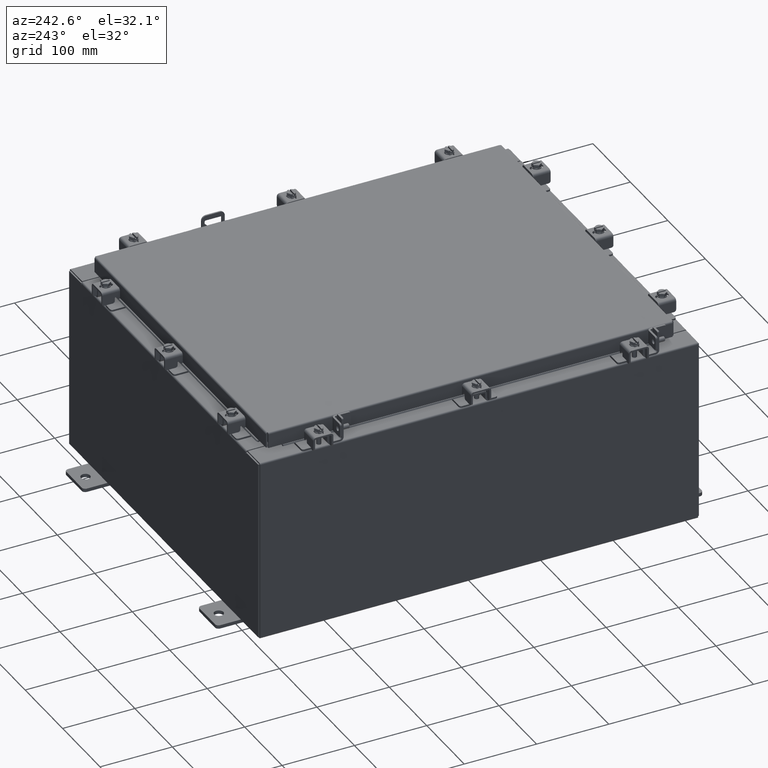
[diagram: clean part render]
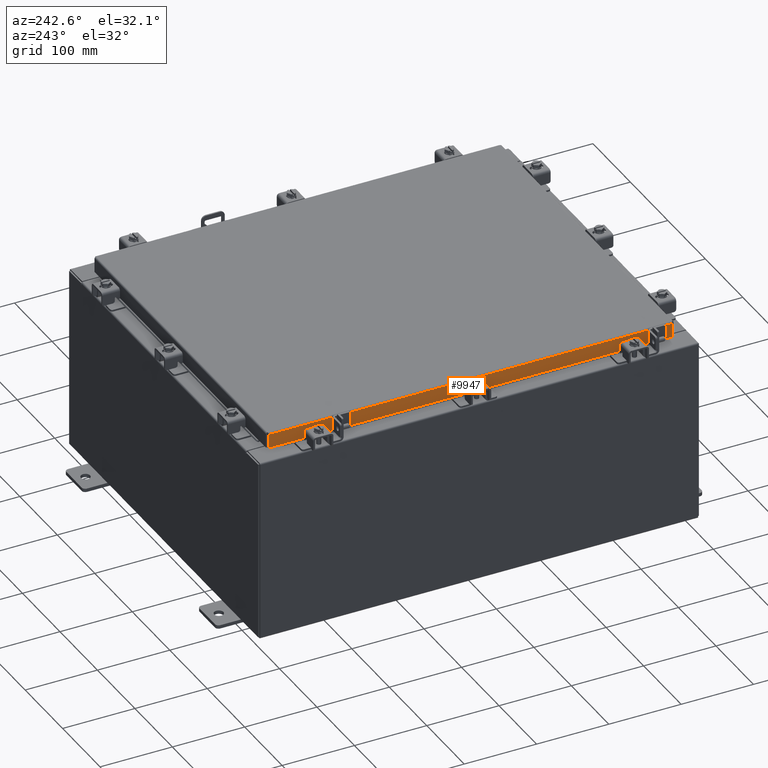
[diagram: same view with one face highlighted and labeled with its STEP entity id]
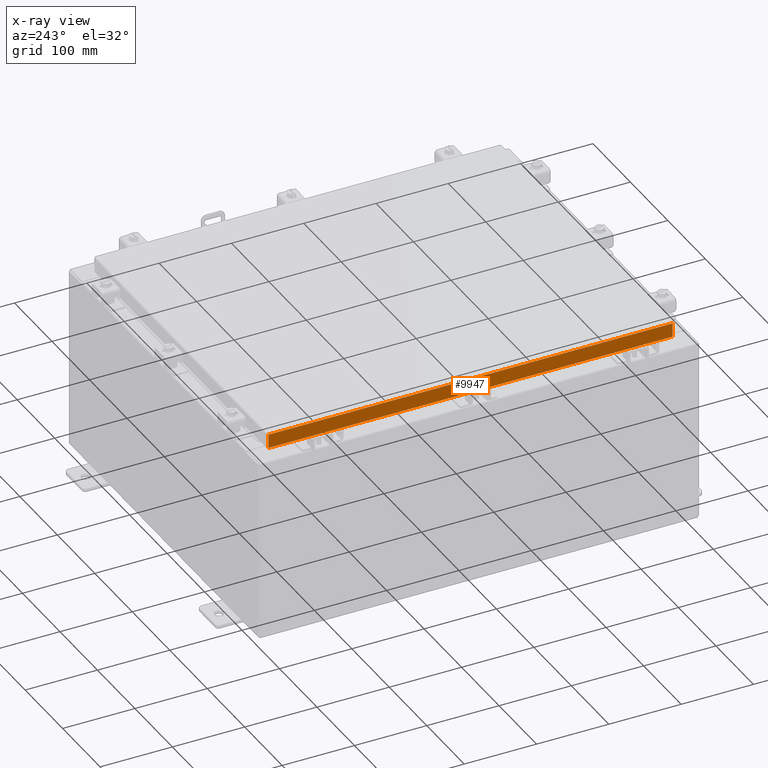
[diagram: x-ray of the same camera — body ghosted, the highlighted face saturated]
A machine part, auxiliary view. The second image highlights one B-rep face of the part: STEP entity #9947.
The next image is the same camera in x-ray: the body ghosted, the highlighted face saturated — about 0% of this face is hidden behind the body in this view.
In plain terms, the highlighted planar face has unit normal (1, 0, -0).
Its self-contained STEP definition (entity closure, byte-faithful):
#551 = LINE ( 'NONE', #21646, #4714 ) ;
#1304 = VERTEX_POINT ( 'NONE', #21882 ) ;
#1315 = VECTOR ( 'NONE', #3451, 39.37007874015748100 ) ;
#1355 = CARTESIAN_POINT ( 'NONE',  ( -9.093999999999995900, -10.25515786437626900, -0.8499999999999999800 ) ) ;
#1889 = LINE ( 'NONE', #17384, #1315 ) ;
#2074 = CARTESIAN_POINT ( 'NONE',  ( -9.094000000000001200, 0.0000000000000000000, 2.622574073917692700E-014 ) ) ;
#3269 = VECTOR ( 'NONE', #18938, 39.37007874015748100 ) ;
#3340 = VERTEX_POINT ( 'NONE', #11591 ) ;
#3451 = DIRECTION ( 'NONE',  ( 4.379057701015054300E-047, 1.000000000000000000, 1.169666303398706600E-016 ) ) ;
#3871 = DIRECTION ( 'NONE',  ( -2.818880942772360100E-015, 0.0000000000000000000, -1.000000000000000000 ) ) ;
#4324 = DIRECTION ( 'NONE',  ( -2.818880942772360100E-015, 6.982962677686267500E-015, -1.000000000000000000 ) ) ;
#4714 = VECTOR ( 'NONE', #4324, 39.37007874015748100 ) ;
#4769 = AXIS2_PLACEMENT_3D ( 'NONE', #2074, #14289, #3871 ) ;
#5080 = VECTOR ( 'NONE', #6622, 39.37007874015748100 ) ;
#5299 = EDGE_CURVE ( 'NONE', #6013, #1304, #13018, .T. ) ;
#5637 = LINE ( 'NONE', #9734, #13821 ) ;
#5962 = CARTESIAN_POINT ( 'NONE',  ( -9.094000000000004700, 11.00515786437627400, -0.8499999999999977600 ) ) ;
#6013 = VERTEX_POINT ( 'NONE', #17179 ) ;
#6310 = FACE_OUTER_BOUND ( 'NONE', #19292, .T. ) ;
#6474 = ORIENTED_EDGE ( 'NONE', *, *, #12133, .F. ) ;
#6622 = DIRECTION ( 'NONE',  ( -2.818880942772360100E-015, 6.982962677686267500E-015, -1.000000000000000000 ) ) ;
#6661 = EDGE_CURVE ( 'NONE', #1304, #20698, #18957, .T. ) ;
#7971 = DIRECTION ( 'NONE',  ( 4.379057701015054300E-047, 1.000000000000000000, 1.169666303398706600E-016 ) ) ;
#8159 = ORIENTED_EDGE ( 'NONE', *, *, #6661, .F. ) ;
#8521 = CARTESIAN_POINT ( 'NONE',  ( -9.093999999999995900, -10.25515786437626900, -0.8499999999999999800 ) ) ;
#9435 = EDGE_CURVE ( 'NONE', #6013, #16396, #551, .T. ) ;
#9734 = CARTESIAN_POINT ( 'NONE',  ( -9.094000000000004700, -11.09400000000000100, -0.8499999999999999800 ) ) ;
#9947 = ADVANCED_FACE ( 'NONE', ( #6310 ), #10802, .F. ) ;
#10357 = LINE ( 'NONE', #8521, #3269 ) ;
#10802 = PLANE ( 'NONE',  #4769 ) ;
#11591 = CARTESIAN_POINT ( 'NONE',  ( -9.093999999999995900, 10.25515786437626900, -0.8499999999999999800 ) ) ;
#11631 = CARTESIAN_POINT ( 'NONE',  ( -9.094000000000001200, -11.09399999999999900, -0.08770000000000026400 ) ) ;
#11826 = CARTESIAN_POINT ( 'NONE',  ( -9.094000000000001200, -11.00515786437626700, -0.07470000000000015500 ) ) ;
#12133 = EDGE_CURVE ( 'NONE', #20698, #20391, #1889, .T. ) ;
#13018 = LINE ( 'NONE', #11631, #17654 ) ;
#13569 = ORIENTED_EDGE ( 'NONE', *, *, #5299, .F. ) ;
#13821 = VECTOR ( 'NONE', #7971, 39.37007874015748100 ) ;
#14222 = ORIENTED_EDGE ( 'NONE', *, *, #17528, .F. ) ;
#14289 = DIRECTION ( 'NONE',  ( 1.000000000000000000, 3.297150052053607100E-031, -2.818880942772360100E-015 ) ) ;
#16396 = VERTEX_POINT ( 'NONE', #5962 ) ;
#17179 = CARTESIAN_POINT ( 'NONE',  ( -9.094000000000001200, 11.00515786437626900, -0.08770000000000026400 ) ) ;
#17384 = CARTESIAN_POINT ( 'NONE',  ( -9.094000000000004700, -11.09400000000000100, -0.8499999999999999800 ) ) ;
#17528 = EDGE_CURVE ( 'NONE', #20391, #3340, #10357, .T. ) ;
#17654 = VECTOR ( 'NONE', #20231, 39.37007874015748100 ) ;
#17869 = ORIENTED_EDGE ( 'NONE', *, *, #9435, .T. ) ;
#18938 = DIRECTION ( 'NONE',  ( -0.0000000000000000000, 1.000000000000000000, -0.0000000000000000000 ) ) ;
#18957 = LINE ( 'NONE', #11826, #5080 ) ;
#19208 = EDGE_CURVE ( 'NONE', #3340, #16396, #5637, .T. ) ;
#19292 = EDGE_LOOP ( 'NONE', ( #13569, #17869, #19578, #14222, #6474, #8159 ) ) ;
#19498 = CARTESIAN_POINT ( 'NONE',  ( -9.094000000000004700, -11.00515786437626200, -0.8499999999999999800 ) ) ;
#19578 = ORIENTED_EDGE ( 'NONE', *, *, #19208, .F. ) ;
#20231 = DIRECTION ( 'NONE',  ( 3.297150052053607100E-031, -1.000000000000000000, -8.987264781119274900E-046 ) ) ;
#20391 = VERTEX_POINT ( 'NONE', #1355 ) ;
#20698 = VERTEX_POINT ( 'NONE', #19498 ) ;
#21646 = CARTESIAN_POINT ( 'NONE',  ( -9.094000000000001200, 11.00515786437626900, 1.027174845617763000E-013 ) ) ;
#21882 = CARTESIAN_POINT ( 'NONE',  ( -9.094000000000001200, -11.00515786437626900, -0.08770000000000026400 ) ) ;